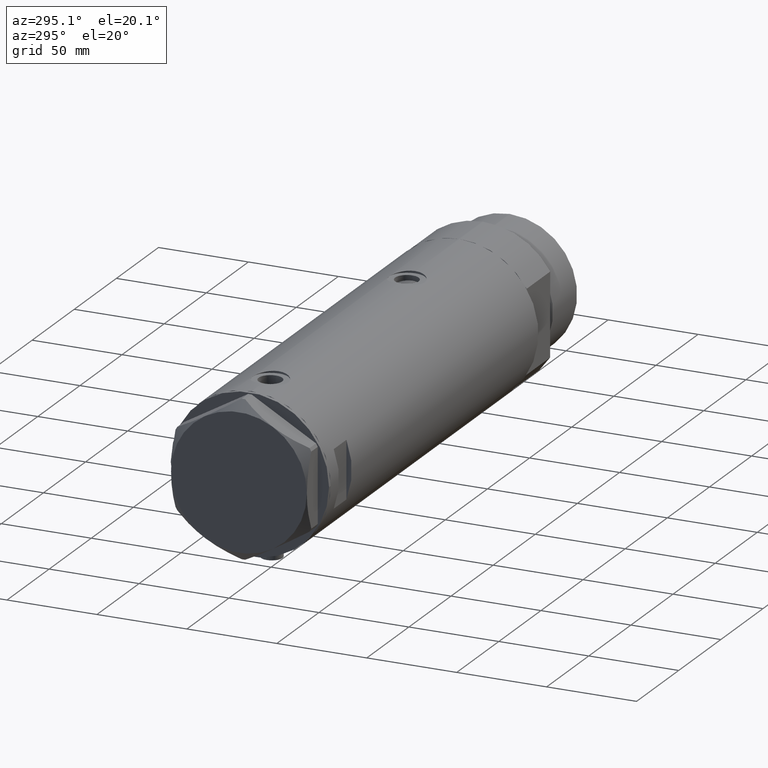
[diagram: clean part render]
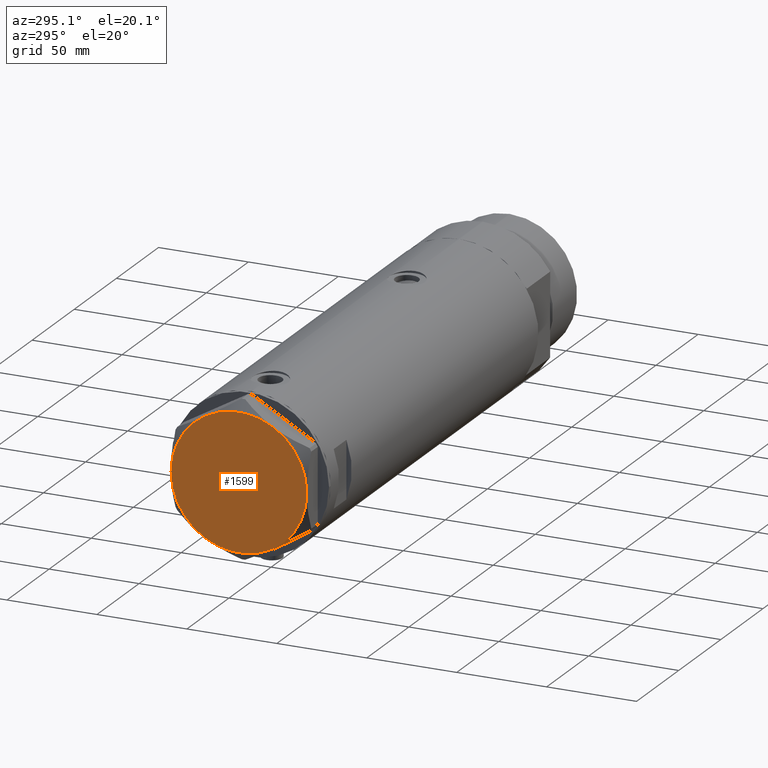
[diagram: same view with one face highlighted and labeled with its STEP entity id]
A machine part, auxiliary view. The second image highlights one B-rep face of the part: STEP entity #1599.
In plain terms, the highlighted planar face has unit normal (-1, -0, 0).
Its self-contained STEP definition (entity closure, byte-faithful):
#70 = EDGE_LOOP ( 'NONE', ( #2665, #650, #2796, #1489, #3498, #3060 ) ) ;
#101 = AXIS2_PLACEMENT_3D ( 'NONE', #2837, #787, #3594 ) ;
#180 = CIRCLE ( 'NONE', #687, 37.75000000000000000 ) ;
#299 = VERTEX_POINT ( 'NONE', #1023 ) ;
#323 = CARTESIAN_POINT ( 'NONE',  ( -18.87499999999999645, 32.69245899286256218, 13.00000000000000000 ) ) ;
#365 = DIRECTION ( 'NONE',  ( 0.000000000000000000, 0.000000000000000000, 1.000000000000000000 ) ) ;
#474 = AXIS2_PLACEMENT_3D ( 'NONE', #3519, #365, #1764 ) ;
#599 = EDGE_CURVE ( 'NONE', #4039, #4341, #3269, .T. ) ;
#650 = ORIENTED_EDGE ( 'NONE', *, *, #719, .T. ) ;
#672 = DIRECTION ( 'NONE',  ( 0.000000000000000000, 0.000000000000000000, 1.000000000000000000 ) ) ;
#681 = FACE_OUTER_BOUND ( 'NONE', #70, .T. ) ;
#687 = AXIS2_PLACEMENT_3D ( 'NONE', #2873, #1830, #1378 ) ;
#719 = EDGE_CURVE ( 'NONE', #299, #3163, #1508, .T. ) ;
#787 = DIRECTION ( 'NONE',  ( 0.000000000000000000, 0.000000000000000000, 1.000000000000000000 ) ) ;
#813 = EDGE_CURVE ( 'NONE', #1248, #299, #180, .T. ) ;
#832 = DIRECTION ( 'NONE',  ( 0.000000000000000000, 0.000000000000000000, 1.000000000000000000 ) ) ;
#845 = EDGE_CURVE ( 'NONE', #3163, #3746, #849, .T. ) ;
#849 = CIRCLE ( 'NONE', #2232, 37.75000000000000000 ) ;
#888 = DIRECTION ( 'NONE',  ( 1.000000000000000000, 0.000000000000000000, 0.000000000000000000 ) ) ;
#1023 = CARTESIAN_POINT ( 'NONE',  ( 37.75000000000000711, 1.802777518484591547E-14, 13.00000000000000000 ) ) ;
#1229 = DIRECTION ( 'NONE',  ( 0.000000000000000000, 0.000000000000000000, 1.000000000000000000 ) ) ;
#1248 = VERTEX_POINT ( 'NONE', #1674 ) ;
#1378 = DIRECTION ( 'NONE',  ( 1.000000000000000000, 0.000000000000000000, 0.000000000000000000 ) ) ;
#1489 = ORIENTED_EDGE ( 'NONE', *, *, #3673, .T. ) ;
#1502 = PLANE ( 'NONE',  #101 ) ;
#1508 = CIRCLE ( 'NONE', #2068, 37.75000000000000000 ) ;
#1565 = CARTESIAN_POINT ( 'NONE',  ( 0.000000000000000000, 0.000000000000000000, 13.00000000000000000 ) ) ;
#1599 = ADVANCED_FACE ( 'NONE', ( #681 ), #1502, .T. ) ;
#1647 = DIRECTION ( 'NONE',  ( 1.000000000000000000, 0.000000000000000000, 0.000000000000000000 ) ) ;
#1674 = CARTESIAN_POINT ( 'NONE',  ( 18.87499999999998579, -32.69245899286256218, 13.00000000000000000 ) ) ;
#1693 = DIRECTION ( 'NONE',  ( 0.000000000000000000, 0.000000000000000000, 1.000000000000000000 ) ) ;
#1764 = DIRECTION ( 'NONE',  ( 1.000000000000000000, 0.000000000000000000, 0.000000000000000000 ) ) ;
#1830 = DIRECTION ( 'NONE',  ( 0.000000000000000000, 0.000000000000000000, 1.000000000000000000 ) ) ;
#2023 = CARTESIAN_POINT ( 'NONE',  ( 0.000000000000000000, 0.000000000000000000, 13.00000000000000000 ) ) ;
#2066 = DIRECTION ( 'NONE',  ( 1.000000000000000000, 0.000000000000000000, 0.000000000000000000 ) ) ;
#2068 = AXIS2_PLACEMENT_3D ( 'NONE', #2023, #1693, #1647 ) ;
#2133 = CARTESIAN_POINT ( 'NONE',  ( 18.87500000000000000, 32.69245899286255508, 13.00000000000000000 ) ) ;
#2199 = DIRECTION ( 'NONE',  ( 1.000000000000000000, 0.000000000000000000, 0.000000000000000000 ) ) ;
#2232 = AXIS2_PLACEMENT_3D ( 'NONE', #3900, #672, #2066 ) ;
#2558 = CARTESIAN_POINT ( 'NONE',  ( 0.000000000000000000, 0.000000000000000000, 13.00000000000000000 ) ) ;
#2665 = ORIENTED_EDGE ( 'NONE', *, *, #813, .T. ) ;
#2796 = ORIENTED_EDGE ( 'NONE', *, *, #845, .T. ) ;
#2837 = CARTESIAN_POINT ( 'NONE',  ( 0.000000000000000000, 0.000000000000000000, 13.00000000000000000 ) ) ;
#2873 = CARTESIAN_POINT ( 'NONE',  ( 0.000000000000000000, 0.000000000000000000, 13.00000000000000000 ) ) ;
#2996 = CIRCLE ( 'NONE', #4311, 37.75000000000000000 ) ;
#3060 = ORIENTED_EDGE ( 'NONE', *, *, #4259, .T. ) ;
#3163 = VERTEX_POINT ( 'NONE', #2133 ) ;
#3190 = CARTESIAN_POINT ( 'NONE',  ( -18.87499999999999645, -32.69245899286255508, 13.00000000000000000 ) ) ;
#3269 = CIRCLE ( 'NONE', #474, 37.75000000000000000 ) ;
#3498 = ORIENTED_EDGE ( 'NONE', *, *, #599, .T. ) ;
#3519 = CARTESIAN_POINT ( 'NONE',  ( 0.000000000000000000, 0.000000000000000000, 13.00000000000000000 ) ) ;
#3594 = DIRECTION ( 'NONE',  ( 1.000000000000000000, 0.000000000000000000, -0.000000000000000000 ) ) ;
#3673 = EDGE_CURVE ( 'NONE', #3746, #4039, #2996, .T. ) ;
#3746 = VERTEX_POINT ( 'NONE', #323 ) ;
#3752 = CARTESIAN_POINT ( 'NONE',  ( -37.75000000000000000, -1.201851678989727067E-14, 13.00000000000000000 ) ) ;
#3871 = AXIS2_PLACEMENT_3D ( 'NONE', #1565, #1229, #888 ) ;
#3900 = CARTESIAN_POINT ( 'NONE',  ( 0.000000000000000000, 0.000000000000000000, 13.00000000000000000 ) ) ;
#4039 = VERTEX_POINT ( 'NONE', #3752 ) ;
#4259 = EDGE_CURVE ( 'NONE', #4341, #1248, #4391, .T. ) ;
#4311 = AXIS2_PLACEMENT_3D ( 'NONE', #2558, #832, #2199 ) ;
#4341 = VERTEX_POINT ( 'NONE', #3190 ) ;
#4391 = CIRCLE ( 'NONE', #3871, 37.75000000000000000 ) ;